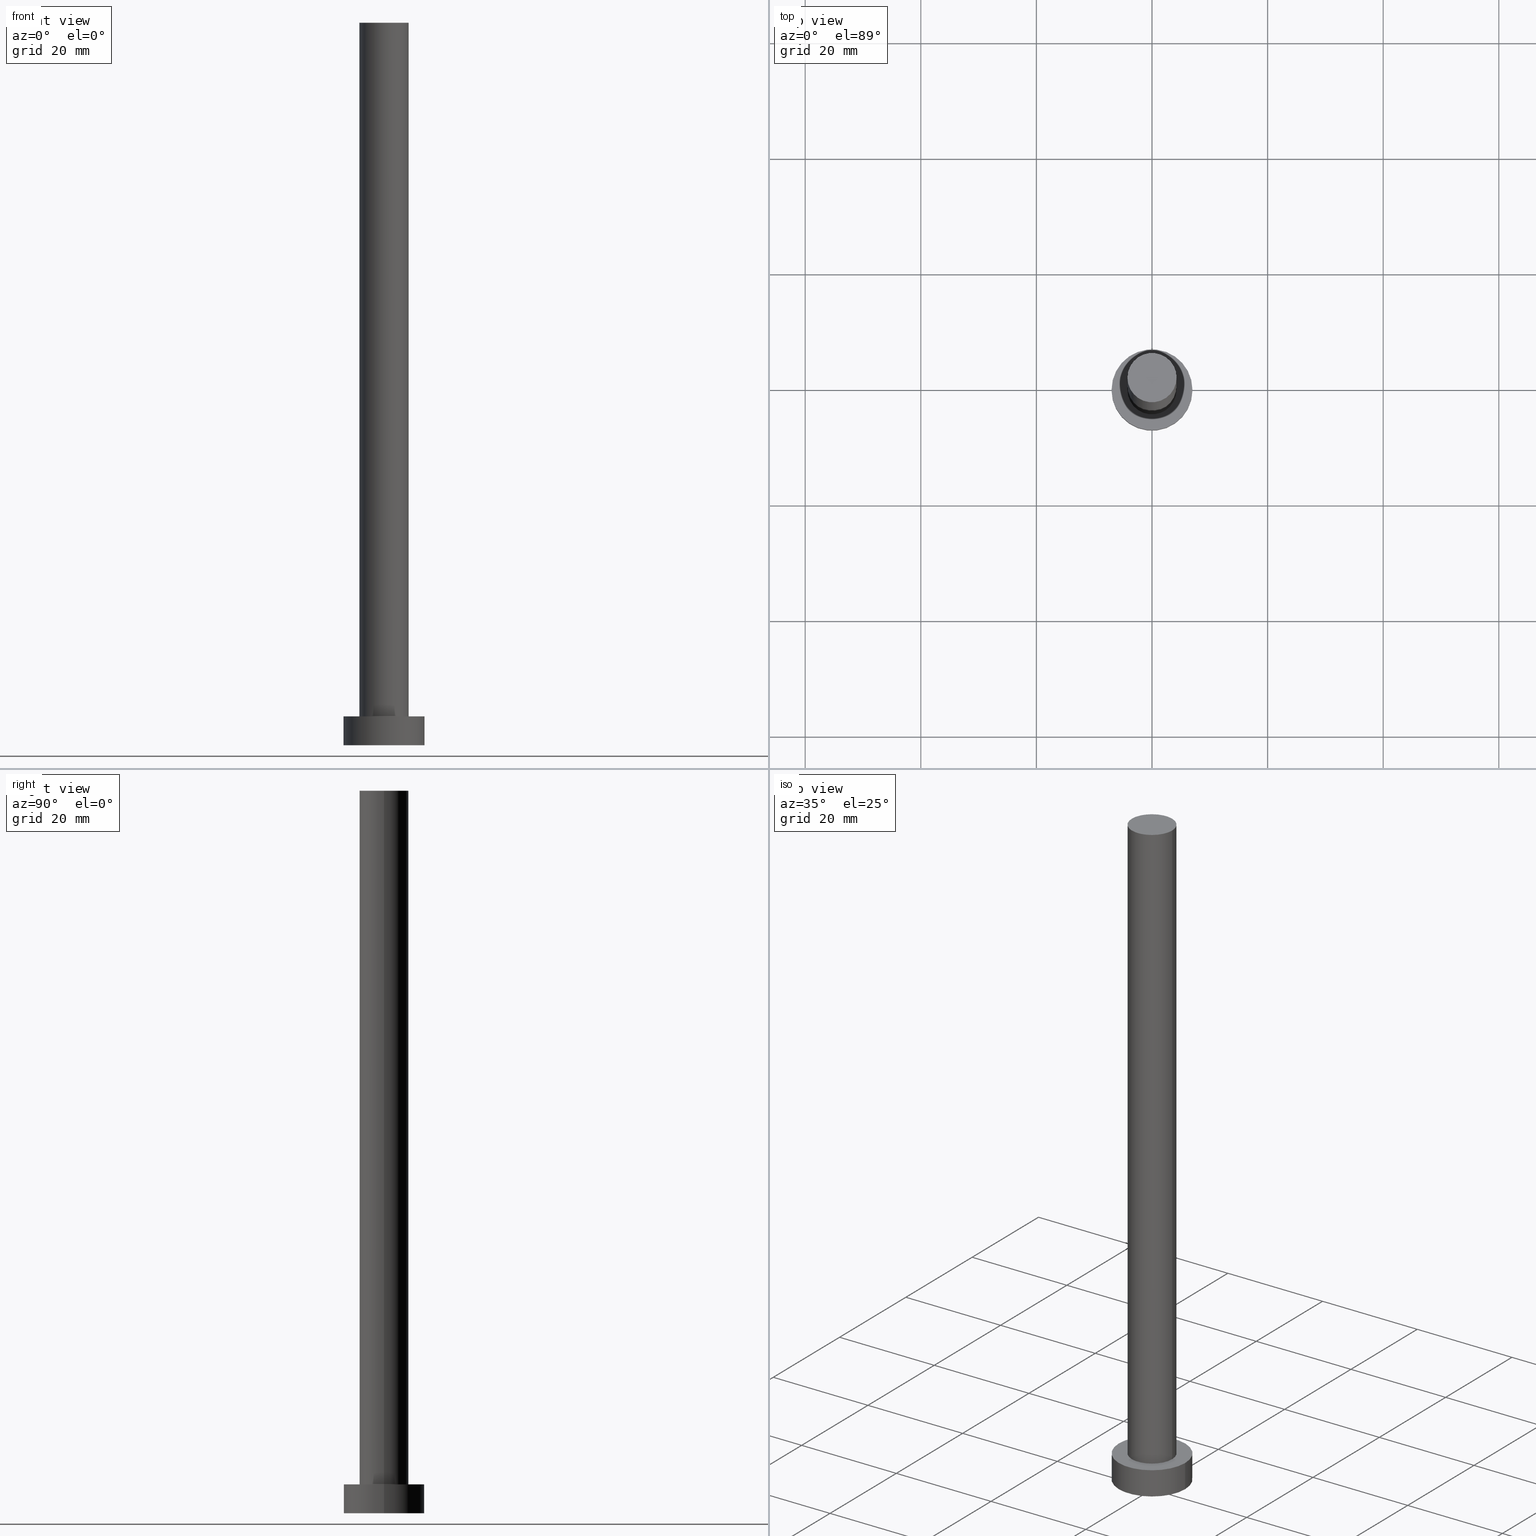
[diagram: canonical four-view strip — front | top / right | iso, engineering-drawing reading convention]
A machine part, canonical four-view strip (front | top / right | iso — engineering-drawing reading convention). The complete STEP part file that produces these views, byte-faithful:
ISO-10303-21;
HEADER;
FILE_DESCRIPTION (( 'STEP AP203' ),
    '1' );
FILE_NAME ('20f9.STEP',
    '2023-02-12T11:11:03',
    ( '' ),
    ( '' ),
    'SwSTEP 2.0',
    'SolidWorks 2019',
    '' );
FILE_SCHEMA (( 'CONFIG_CONTROL_DESIGN' ));
ENDSEC;

DATA;
#1 = DIRECTION ( 'NONE',  ( 0.000000000000000000, 0.000000000000000000, 1.000000000000000000 ) ) ;
#2 = ADVANCED_FACE ( 'NONE', ( #56 ), #152, .T. ) ;
#3 = CIRCLE ( 'NONE', #137, 4.250000000000000000 ) ;
#4 = CARTESIAN_POINT ( 'NONE',  ( -7.000000000000000000, 0.000000000000000000, 5.000000000000000000 ) ) ;
#5 = AXIS2_PLACEMENT_3D ( 'NONE', #192, #22, #115 ) ;
#6 = DIRECTION ( 'NONE',  ( -0.000000000000000000, -0.000000000000000000, -1.000000000000000000 ) ) ;
#7 = DESIGN_CONTEXT ( 'detailed design', #167, 'design' ) ;
#8 = DIRECTION ( 'NONE',  ( 1.000000000000000000, 0.000000000000000000, 0.000000000000000000 ) ) ;
#9 = DIRECTION ( 'NONE',  ( 0.000000000000000000, 0.000000000000000000, 1.000000000000000000 ) ) ;
#10 = PRODUCT ( '20f9', '20f9', '', ( #200 ) ) ;
#11 = ORIENTED_EDGE ( 'NONE', *, *, #147, .T. ) ;
#12 = CALENDAR_DATE ( 2023, 12, 2 ) ;
#13 = EDGE_LOOP ( 'NONE', ( #131, #227 ) ) ;
#14 = AXIS2_PLACEMENT_3D ( 'NONE', #142, #125, #8 ) ;
#15 = APPROVAL_STATUS ( 'not_yet_approved' ) ;
#16 = SHAPE_DEFINITION_REPRESENTATION ( #182, #106 ) ;
#17 = PLANE ( 'NONE',  #218 ) ;
#18 = APPROVAL ( #134, 'NEUR�EN�' ) ;
#19 = LINE ( 'NONE', #138, #228 ) ;
#20 = DIRECTION ( 'NONE',  ( 1.000000000000000000, 0.000000000000000000, 0.000000000000000000 ) ) ;
#21 = FACE_OUTER_BOUND ( 'NONE', #248, .T. ) ;
#22 = DIRECTION ( 'NONE',  ( -0.000000000000000000, -0.000000000000000000, -1.000000000000000000 ) ) ;
#23 = AXIS2_PLACEMENT_3D ( 'NONE', #70, #221, #159 ) ;
#24 = CARTESIAN_POINT ( 'NONE',  ( -4.250000000000000000, 0.000000000000000000, 125.0000000000000000 ) ) ;
#25 = CC_DESIGN_PERSON_AND_ORGANIZATION_ASSIGNMENT ( #66, #216, ( #10 ) ) ;
#26 = VERTEX_POINT ( 'NONE', #212 ) ;
#27 = ADVANCED_FACE ( 'NONE', ( #21 ), #190, .T. ) ;
#28 = FACE_OUTER_BOUND ( 'NONE', #184, .T. ) ;
#29 = ORIENTED_EDGE ( 'NONE', *, *, #89, .F. ) ;
#30 = DIRECTION ( 'NONE',  ( -0.000000000000000000, -0.000000000000000000, -1.000000000000000000 ) ) ;
#31 = PERSON_AND_ORGANIZATION ( #45, #103 ) ;
#32 = AXIS2_PLACEMENT_3D ( 'NONE', #90, #199, #215 ) ;
#33 = VERTEX_POINT ( 'NONE', #230 ) ;
#34 = ADVANCED_FACE ( 'NONE', ( #40 ), #156, .T. ) ;
#35 = ORIENTED_EDGE ( 'NONE', *, *, #126, .T. ) ;
#36 = COORDINATED_UNIVERSAL_TIME_OFFSET ( 1, 0, .AHEAD. ) ;
#37 = FACE_OUTER_BOUND ( 'NONE', #88, .T. ) ;
#38 = CC_DESIGN_APPROVAL ( #172, ( #85 ) ) ;
#39 = EDGE_CURVE ( 'NONE', #146, #75, #19, .T. ) ;
#40 = FACE_OUTER_BOUND ( 'NONE', #62, .T. ) ;
#41 = ORIENTED_EDGE ( 'NONE', *, *, #47, .F. ) ;
#42 = ORIENTED_EDGE ( 'NONE', *, *, #126, .F. ) ;
#43 = VECTOR ( 'NONE', #30, 1000.000000000000000 ) ;
#44 = CIRCLE ( 'NONE', #252, 7.000000000000000000 ) ;
#45 = PERSON ( 'NEUR�EN�', 'NEUR�EN�', 'NEUR�EN�', ('NEUR�EN�'), ('NEUR�EN�'), ('NEUR�EN�') ) ;
#46 = DIRECTION ( 'NONE',  ( -0.000000000000000000, -0.000000000000000000, -1.000000000000000000 ) ) ;
#47 = EDGE_CURVE ( 'NONE', #33, #110, #63, .T. ) ;
#48 = DIRECTION ( 'NONE',  ( 0.000000000000000000, 0.000000000000000000, 1.000000000000000000 ) ) ;
#49 = EDGE_LOOP ( 'NONE', ( #232, #251 ) ) ;
#50 = CARTESIAN_POINT ( 'NONE',  ( 0.000000000000000000, 0.000000000000000000, 125.0000000000000000 ) ) ;
#51 = COORDINATED_UNIVERSAL_TIME_OFFSET ( 1, 0, .AHEAD. ) ;
#52 = VERTEX_POINT ( 'NONE', #119 ) ;
#53 = PERSON_AND_ORGANIZATION ( #45, #103 ) ;
#54 = LOCAL_TIME ( 12, 11, 3.000000000000000000, #51 ) ;
#55 = VERTEX_POINT ( 'NONE', #196 ) ;
#56 = FACE_OUTER_BOUND ( 'NONE', #241, .T. ) ;
#57 = DATE_AND_TIME ( #229, #203 ) ;
#58 = DIRECTION ( 'NONE',  ( 0.000000000000000000, 0.000000000000000000, 1.000000000000000000 ) ) ;
#59 = AXIS2_PLACEMENT_3D ( 'NONE', #101, #120, #180 ) ;
#60 = DIRECTION ( 'NONE',  ( -0.000000000000000000, -0.000000000000000000, -1.000000000000000000 ) ) ;
#61 = CARTESIAN_POINT ( 'NONE',  ( 0.000000000000000000, 0.000000000000000000, 0.000000000000000000 ) ) ;
#62 = EDGE_LOOP ( 'NONE', ( #175, #161, #226, #254 ) ) ;
#63 = CIRCLE ( 'NONE', #151, 4.250000000000000000 ) ;
#64 = ADVANCED_FACE ( 'NONE', ( #233, #194 ), #149, .T. ) ;
#65 = VECTOR ( 'NONE', #6, 1000.000000000000000 ) ;
#66 = PERSON_AND_ORGANIZATION ( #45, #103 ) ;
#67 = APPROVAL ( #71, 'NEUR�EN�' ) ;
#68 = APPLICATION_PROTOCOL_DEFINITION ( 'international standard', 'config_control_design', 1994, #189 ) ;
#69 = ORIENTED_EDGE ( 'NONE', *, *, #147, .F. ) ;
#70 = CARTESIAN_POINT ( 'NONE',  ( 0.000000000000000000, 0.000000000000000000, 0.000000000000000000 ) ) ;
#71 = APPROVAL_STATUS ( 'not_yet_approved' ) ;
#72 = DIRECTION ( 'NONE',  ( -1.000000000000000000, 0.000000000000000000, 0.000000000000000000 ) ) ;
#73 = PERSON_AND_ORGANIZATION ( #45, #103 ) ;
#74 = ORIENTED_EDGE ( 'NONE', *, *, #154, .F. ) ;
#75 = VERTEX_POINT ( 'NONE', #173 ) ;
#76 = AXIS2_PLACEMENT_3D ( 'NONE', #50, #163, #81 ) ;
#77 = DIRECTION ( 'NONE',  ( -0.000000000000000000, -0.000000000000000000, -1.000000000000000000 ) ) ;
#78 = AXIS2_PLACEMENT_3D ( 'NONE', #239, #204, #235 ) ;
#79 = ORIENTED_EDGE ( 'NONE', *, *, #154, .T. ) ;
#80 = ADVANCED_FACE ( 'NONE', ( #206 ), #17, .F. ) ;
#81 = DIRECTION ( 'NONE',  ( -1.000000000000000000, 0.000000000000000000, 0.000000000000000000 ) ) ;
#82 = AXIS2_PLACEMENT_3D ( 'NONE', #140, #153, #102 ) ;
#83 = APPROVAL_PERSON_ORGANIZATION ( #124, #18, #166 ) ;
#84 =( NAMED_UNIT ( * ) PLANE_ANGLE_UNIT ( ) SI_UNIT ( $, .RADIAN. ) );
#85 = PRODUCT_DEFINITION_FORMATION_WITH_SPECIFIED_SOURCE ( 'LIBOVOLN�', '', #10, .NOT_KNOWN. ) ;
#86 = LINE ( 'NONE', #24, #43 ) ;
#87 = DIRECTION ( 'NONE',  ( 1.000000000000000000, 0.000000000000000000, 0.000000000000000000 ) ) ;
#88 = EDGE_LOOP ( 'NONE', ( #128, #11 ) ) ;
#89 = EDGE_CURVE ( 'NONE', #100, #146, #135, .T. ) ;
#90 = CARTESIAN_POINT ( 'NONE',  ( 0.000000000000000000, 0.000000000000000000, 5.000000000000000000 ) ) ;
#91 = AXIS2_PLACEMENT_3D ( 'NONE', #198, #60, #133 ) ;
#92 = CALENDAR_DATE ( 2023, 12, 2 ) ;
#93 = APPROVAL_DATE_TIME ( #57, #172 ) ;
#94 = ADVANCED_FACE ( 'NONE', ( #37 ), #253, .T. ) ;
#95 = DATE_AND_TIME ( #12, #114 ) ;
#96 = EDGE_CURVE ( 'NONE', #110, #26, #201, .T. ) ;
#97 = DATE_TIME_ROLE ( 'classification_date' ) ;
#98 = DIRECTION ( 'NONE',  ( 0.000000000000000000, 0.000000000000000000, 1.000000000000000000 ) ) ;
#99 = PERSON_AND_ORGANIZATION_ROLE ( 'classification_officer' ) ;
#100 = VERTEX_POINT ( 'NONE', #177 ) ;
#101 = CARTESIAN_POINT ( 'NONE',  ( 0.000000000000000000, 0.000000000000000000, 125.0000000000000000 ) ) ;
#102 = DIRECTION ( 'NONE',  ( 1.000000000000000000, 0.000000000000000000, -0.000000000000000000 ) ) ;
#103 = ORGANIZATION ( 'NEUR�EN�', 'NEUR�EN�', '' ) ;
#104 = ORIENTED_EDGE ( 'NONE', *, *, #141, .T. ) ;
#105 = ADVANCED_FACE ( 'NONE', ( #28 ), #176, .T. ) ;
#106 = ADVANCED_BREP_SHAPE_REPRESENTATION ( '20f9', ( #155, #78 ), #143 ) ;
#107 = DIRECTION ( 'NONE',  ( 1.000000000000000000, 0.000000000000000000, 0.000000000000000000 ) ) ;
#108 = CARTESIAN_POINT ( 'NONE',  ( 0.000000000000000000, 0.000000000000000000, 5.000000000000000000 ) ) ;
#109 = CARTESIAN_POINT ( 'NONE',  ( 4.250000000000000000, 5.204748896376250699E-16, 125.0000000000000000 ) ) ;
#110 = VERTEX_POINT ( 'NONE', #157 ) ;
#111 = DIRECTION ( 'NONE',  ( 1.000000000000000000, 0.000000000000000000, 0.000000000000000000 ) ) ;
#112 = PERSON_AND_ORGANIZATION_ROLE ( 'creator' ) ;
#113 = COORDINATED_UNIVERSAL_TIME_OFFSET ( 1, 0, .AHEAD. ) ;
#114 = LOCAL_TIME ( 12, 11, 3.000000000000000000, #183 ) ;
#115 = DIRECTION ( 'NONE',  ( -1.000000000000000000, 0.000000000000000000, 0.000000000000000000 ) ) ;
#116 = EDGE_CURVE ( 'NONE', #52, #75, #44, .T. ) ;
#117 = APPROVAL_DATE_TIME ( #247, #67 ) ;
#118 = CARTESIAN_POINT ( 'NONE',  ( 0.000000000000000000, 0.000000000000000000, 125.0000000000000000 ) ) ;
#119 = CARTESIAN_POINT ( 'NONE',  ( -7.000000000000000000, 0.000000000000000000, 0.000000000000000000 ) ) ;
#120 = DIRECTION ( 'NONE',  ( 0.000000000000000000, 0.000000000000000000, 1.000000000000000000 ) ) ;
#121 = CARTESIAN_POINT ( 'NONE',  ( 0.000000000000000000, 0.000000000000000000, 125.0000000000000000 ) ) ;
#122 = CC_DESIGN_APPROVAL ( #67, ( #158 ) ) ;
#123 = CC_DESIGN_PERSON_AND_ORGANIZATION_ASSIGNMENT ( #132, #99, ( #158 ) ) ;
#124 = PERSON_AND_ORGANIZATION ( #45, #103 ) ;
#125 = DIRECTION ( 'NONE',  ( 0.000000000000000000, 0.000000000000000000, 1.000000000000000000 ) ) ;
#126 = EDGE_CURVE ( 'NONE', #26, #55, #148, .T. ) ;
#127 = APPROVAL_ROLE ( '' ) ;
#128 = ORIENTED_EDGE ( 'NONE', *, *, #47, .T. ) ;
#129 = DATE_AND_TIME ( #246, #54 ) ;
#130 = APPROVAL_PERSON_ORGANIZATION ( #185, #172, #222 ) ;
#131 = ORIENTED_EDGE ( 'NONE', *, *, #116, .F. ) ;
#132 = PERSON_AND_ORGANIZATION ( #45, #103 ) ;
#133 = DIRECTION ( 'NONE',  ( -1.000000000000000000, 0.000000000000000000, 0.000000000000000000 ) ) ;
#134 = APPROVAL_STATUS ( 'not_yet_approved' ) ;
#135 = CIRCLE ( 'NONE', #162, 7.000000000000000000 ) ;
#136 = ORIENTED_EDGE ( 'NONE', *, *, #96, .T. ) ;
#137 = AXIS2_PLACEMENT_3D ( 'NONE', #108, #48, #111 ) ;
#138 = CARTESIAN_POINT ( 'NONE',  ( 7.000000000000000000, 8.572527594031473190E-16, 5.000000000000000000 ) ) ;
#139 = ORIENTED_EDGE ( 'NONE', *, *, #96, .F. ) ;
#140 = CARTESIAN_POINT ( 'NONE',  ( 0.000000000000000000, 0.000000000000000000, 5.000000000000000000 ) ) ;
#141 = EDGE_CURVE ( 'NONE', #100, #52, #179, .T. ) ;
#142 = CARTESIAN_POINT ( 'NONE',  ( 0.000000000000000000, 0.000000000000000000, 5.000000000000000000 ) ) ;
#143 =( GEOMETRIC_REPRESENTATION_CONTEXT ( 3 ) GLOBAL_UNCERTAINTY_ASSIGNED_CONTEXT ( ( #238 ) ) GLOBAL_UNIT_ASSIGNED_CONTEXT ( ( #160, #84, #205 ) ) REPRESENTATION_CONTEXT ( 'NONE', 'WORKASPACE' ) );
#144 = CARTESIAN_POINT ( 'NONE',  ( 0.000000000000000000, 0.000000000000000000, 0.000000000000000000 ) ) ;
#145 = COORDINATED_UNIVERSAL_TIME_OFFSET ( 1, 0, .AHEAD. ) ;
#146 = VERTEX_POINT ( 'NONE', #219 ) ;
#147 = EDGE_CURVE ( 'NONE', #110, #33, #244, .T. ) ;
#148 = CIRCLE ( 'NONE', #32, 4.250000000000000000 ) ;
#149 = PLANE ( 'NONE',  #82 ) ;
#150 = CARTESIAN_POINT ( 'NONE',  ( 0.000000000000000000, 0.000000000000000000, 5.000000000000000000 ) ) ;
#151 = AXIS2_PLACEMENT_3D ( 'NONE', #118, #210, #211 ) ;
#152 = CYLINDRICAL_SURFACE ( 'NONE', #5, 7.000000000000000000 ) ;
#153 = DIRECTION ( 'NONE',  ( 0.000000000000000000, 0.000000000000000000, 1.000000000000000000 ) ) ;
#154 = EDGE_CURVE ( 'NONE', #55, #26, #3, .T. ) ;
#155 = MANIFOLD_SOLID_BREP ( 'P�idat vysunut�m3', #195 ) ;
#156 = CYLINDRICAL_SURFACE ( 'NONE', #91, 7.000000000000000000 ) ;
#157 = CARTESIAN_POINT ( 'NONE',  ( 4.250000000000000000, 5.204748896376250699E-16, 125.0000000000000000 ) ) ;
#158 = SECURITY_CLASSIFICATION ( '', '', #249 ) ;
#159 = DIRECTION ( 'NONE',  ( 1.000000000000000000, 0.000000000000000000, 0.000000000000000000 ) ) ;
#160 =( LENGTH_UNIT ( ) NAMED_UNIT ( * ) SI_UNIT ( .MILLI., .METRE. ) );
#161 = ORIENTED_EDGE ( 'NONE', *, *, #39, .T. ) ;
#162 = AXIS2_PLACEMENT_3D ( 'NONE', #150, #58, #20 ) ;
#163 = DIRECTION ( 'NONE',  ( -0.000000000000000000, -0.000000000000000000, -1.000000000000000000 ) ) ;
#164 = CC_DESIGN_PERSON_AND_ORGANIZATION_ASSIGNMENT ( #168, #112, ( #85 ) ) ;
#165 = APPROVAL_DATE_TIME ( #95, #18 ) ;
#166 = APPROVAL_ROLE ( '' ) ;
#167 = APPLICATION_CONTEXT ( 'configuration controlled 3d designs of mechanical parts and assemblies' ) ;
#168 = PERSON_AND_ORGANIZATION ( #45, #103 ) ;
#169 = CALENDAR_DATE ( 2023, 12, 2 ) ;
#170 = DIRECTION ( 'NONE',  ( 1.000000000000000000, 0.000000000000000000, -0.000000000000000000 ) ) ;
#171 = DIRECTION ( 'NONE',  ( -0.000000000000000000, -0.000000000000000000, -1.000000000000000000 ) ) ;
#172 = APPROVAL ( #15, 'NEUR�EN�' ) ;
#173 = CARTESIAN_POINT ( 'NONE',  ( 7.000000000000000000, 8.572527594031473190E-16, 0.000000000000000000 ) ) ;
#174 = VECTOR ( 'NONE', #46, 1000.000000000000000 ) ;
#175 = ORIENTED_EDGE ( 'NONE', *, *, #240, .F. ) ;
#176 = CYLINDRICAL_SURFACE ( 'NONE', #76, 4.250000000000000000 ) ;
#177 = CARTESIAN_POINT ( 'NONE',  ( -7.000000000000000000, 0.000000000000000000, 5.000000000000000000 ) ) ;
#178 = CC_DESIGN_SECURITY_CLASSIFICATION ( #158, ( #85 ) ) ;
#179 = LINE ( 'NONE', #4, #174 ) ;
#180 = DIRECTION ( 'NONE',  ( 1.000000000000000000, 0.000000000000000000, -0.000000000000000000 ) ) ;
#181 = EDGE_LOOP ( 'NONE', ( #74, #42 ) ) ;
#182 = PRODUCT_DEFINITION_SHAPE ( 'NONE', 'NONE',  #209 ) ;
#183 = COORDINATED_UNIVERSAL_TIME_OFFSET ( 1, 0, .AHEAD. ) ;
#184 = EDGE_LOOP ( 'NONE', ( #139, #41, #250, #79 ) ) ;
#185 = PERSON_AND_ORGANIZATION ( #45, #103 ) ;
#186 = PRODUCT_RELATED_PRODUCT_CATEGORY ( 'detail', '', ( #10 ) ) ;
#187 = PERSON_AND_ORGANIZATION_ROLE ( 'creator' ) ;
#188 = AXIS2_PLACEMENT_3D ( 'NONE', #121, #171, #72 ) ;
#189 = APPLICATION_CONTEXT ( 'configuration controlled 3d designs of mechanical parts and assemblies' ) ;
#190 = CYLINDRICAL_SURFACE ( 'NONE', #188, 4.250000000000000000 ) ;
#191 = AXIS2_PLACEMENT_3D ( 'NONE', #242, #1, #107 ) ;
#192 = CARTESIAN_POINT ( 'NONE',  ( 0.000000000000000000, 0.000000000000000000, 5.000000000000000000 ) ) ;
#193 = CC_DESIGN_DATE_AND_TIME_ASSIGNMENT ( #129, #97, ( #158 ) ) ;
#194 = FACE_OUTER_BOUND ( 'NONE', #49, .T. ) ;
#195 = CLOSED_SHELL ( 'NONE', ( #27, #34, #2, #64, #80, #105, #94 ) ) ;
#196 = CARTESIAN_POINT ( 'NONE',  ( -4.250000000000000000, 0.000000000000000000, 5.000000000000000000 ) ) ;
#197 = APPROVAL_PERSON_ORGANIZATION ( #73, #67, #127 ) ;
#198 = CARTESIAN_POINT ( 'NONE',  ( 0.000000000000000000, 0.000000000000000000, 5.000000000000000000 ) ) ;
#199 = DIRECTION ( 'NONE',  ( 0.000000000000000000, 0.000000000000000000, 1.000000000000000000 ) ) ;
#200 = MECHANICAL_CONTEXT ( 'NONE', #189, 'mechanical' ) ;
#201 = LINE ( 'NONE', #109, #65 ) ;
#202 = ORIENTED_EDGE ( 'NONE', *, *, #39, .F. ) ;
#203 = LOCAL_TIME ( 12, 11, 3.000000000000000000, #145 ) ;
#204 = DIRECTION ( 'NONE',  ( 0.000000000000000000, 0.000000000000000000, 1.000000000000000000 ) ) ;
#205 =( NAMED_UNIT ( * ) SI_UNIT ( $, .STERADIAN. ) SOLID_ANGLE_UNIT ( ) );
#206 = FACE_OUTER_BOUND ( 'NONE', #13, .T. ) ;
#207 = DATE_TIME_ROLE ( 'creation_date' ) ;
#208 = ORIENTED_EDGE ( 'NONE', *, *, #243, .F. ) ;
#209 = PRODUCT_DEFINITION ( 'NEZN�M�', '', #85, #7 ) ;
#210 = DIRECTION ( 'NONE',  ( 0.000000000000000000, 0.000000000000000000, 1.000000000000000000 ) ) ;
#211 = DIRECTION ( 'NONE',  ( 1.000000000000000000, 0.000000000000000000, 0.000000000000000000 ) ) ;
#212 = CARTESIAN_POINT ( 'NONE',  ( 4.250000000000000000, 5.204748896376250699E-16, 5.000000000000000000 ) ) ;
#213 = APPLICATION_PROTOCOL_DEFINITION ( 'international standard', 'config_control_design', 1994, #167 ) ;
#214 = CIRCLE ( 'NONE', #23, 7.000000000000000000 ) ;
#215 = DIRECTION ( 'NONE',  ( 1.000000000000000000, 0.000000000000000000, 0.000000000000000000 ) ) ;
#216 = PERSON_AND_ORGANIZATION_ROLE ( 'design_owner' ) ;
#217 = EDGE_CURVE ( 'NONE', #75, #52, #214, .T. ) ;
#218 = AXIS2_PLACEMENT_3D ( 'NONE', #61, #98, #170 ) ;
#219 = CARTESIAN_POINT ( 'NONE',  ( 7.000000000000000000, 8.572527594031473190E-16, 5.000000000000000000 ) ) ;
#220 = CC_DESIGN_PERSON_AND_ORGANIZATION_ASSIGNMENT ( #31, #187, ( #209 ) ) ;
#221 = DIRECTION ( 'NONE',  ( 0.000000000000000000, 0.000000000000000000, 1.000000000000000000 ) ) ;
#222 = APPROVAL_ROLE ( '' ) ;
#223 = DATE_AND_TIME ( #92, #236 ) ;
#224 = ORIENTED_EDGE ( 'NONE', *, *, #116, .T. ) ;
#225 = LOCAL_TIME ( 12, 11, 3.000000000000000000, #36 ) ;
#226 = ORIENTED_EDGE ( 'NONE', *, *, #217, .T. ) ;
#227 = ORIENTED_EDGE ( 'NONE', *, *, #217, .F. ) ;
#228 = VECTOR ( 'NONE', #77, 1000.000000000000000 ) ;
#229 = CALENDAR_DATE ( 2023, 12, 2 ) ;
#230 = CARTESIAN_POINT ( 'NONE',  ( -4.250000000000000000, 0.000000000000000000, 125.0000000000000000 ) ) ;
#231 = CIRCLE ( 'NONE', #14, 7.000000000000000000 ) ;
#232 = ORIENTED_EDGE ( 'NONE', *, *, #89, .T. ) ;
#233 = FACE_BOUND ( 'NONE', #181, .T. ) ;
#234 = CC_DESIGN_PERSON_AND_ORGANIZATION_ASSIGNMENT ( #53, #245, ( #85 ) ) ;
#235 = DIRECTION ( 'NONE',  ( 1.000000000000000000, 0.000000000000000000, 0.000000000000000000 ) ) ;
#236 = LOCAL_TIME ( 12, 11, 3.000000000000000000, #113 ) ;
#237 = CC_DESIGN_APPROVAL ( #18, ( #209 ) ) ;
#238 = UNCERTAINTY_MEASURE_WITH_UNIT (LENGTH_MEASURE( 1.000000000000000082E-05 ), #160, 'distance_accuracy_value', 'NONE');
#239 = CARTESIAN_POINT ( 'NONE',  ( 0.000000000000000000, 0.000000000000000000, 0.000000000000000000 ) ) ;
#240 = EDGE_CURVE ( 'NONE', #146, #100, #231, .T. ) ;
#241 = EDGE_LOOP ( 'NONE', ( #202, #29, #104, #224 ) ) ;
#242 = CARTESIAN_POINT ( 'NONE',  ( 0.000000000000000000, 0.000000000000000000, 125.0000000000000000 ) ) ;
#243 = EDGE_CURVE ( 'NONE', #33, #55, #86, .T. ) ;
#244 = CIRCLE ( 'NONE', #191, 4.250000000000000000 ) ;
#245 = PERSON_AND_ORGANIZATION_ROLE ( 'design_supplier' ) ;
#246 = CALENDAR_DATE ( 2023, 12, 2 ) ;
#247 = DATE_AND_TIME ( #169, #225 ) ;
#248 = EDGE_LOOP ( 'NONE', ( #69, #136, #35, #208 ) ) ;
#249 = SECURITY_CLASSIFICATION_LEVEL ( 'unclassified' ) ;
#250 = ORIENTED_EDGE ( 'NONE', *, *, #243, .T. ) ;
#251 = ORIENTED_EDGE ( 'NONE', *, *, #240, .T. ) ;
#252 = AXIS2_PLACEMENT_3D ( 'NONE', #144, #9, #87 ) ;
#253 = PLANE ( 'NONE',  #59 ) ;
#254 = ORIENTED_EDGE ( 'NONE', *, *, #141, .F. ) ;
#255 = CC_DESIGN_DATE_AND_TIME_ASSIGNMENT ( #223, #207, ( #209 ) ) ;
ENDSEC;
END-ISO-10303-21;
